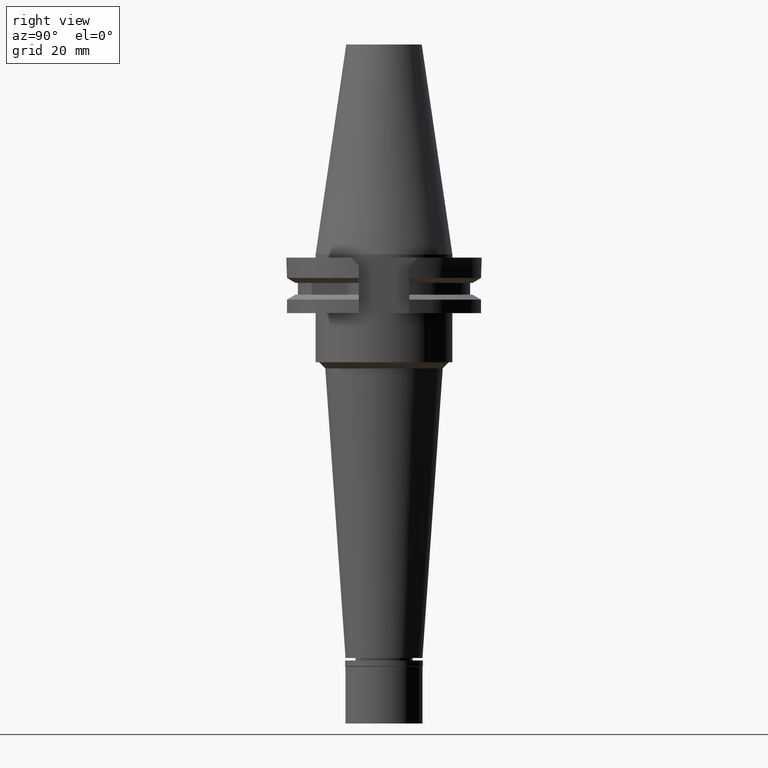
[diagram: clean part render]
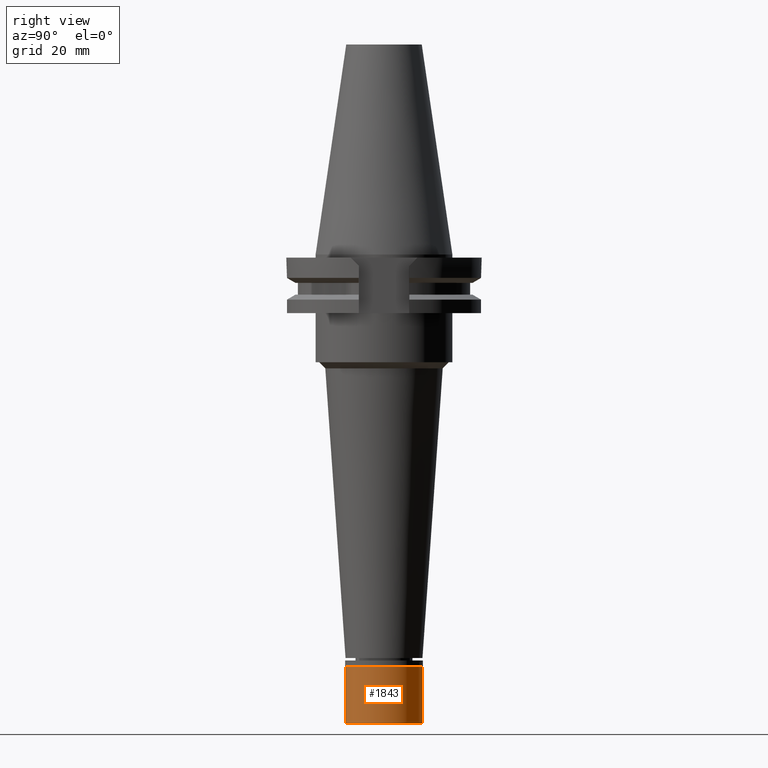
[diagram: same view with one face highlighted and labeled with its STEP entity id]
A machine part, right view. The second image highlights one B-rep face of the part: STEP entity #1843.
In plain terms, the highlighted cylindrical surface (partial cylindrical patch) has radius 12.5 mm, axis along (0, 0, -1).
Its self-contained STEP definition (entity closure, byte-faithful):
#56 = CARTESIAN_POINT ( 'NONE',  ( 0.0000000000000000000, 0.0000000000000000000, -2.000000000000000000 ) ) ;
#288 = FACE_OUTER_BOUND ( 'NONE', #3217, .T. ) ;
#315 = VERTEX_POINT ( 'NONE', #2387 ) ;
#342 = EDGE_CURVE ( 'NONE', #315, #1476, #2000, .T. ) ;
#451 = CIRCLE ( 'NONE', #1829, 12.50000000000000000 ) ;
#491 = ORIENTED_EDGE ( 'NONE', *, *, #2124, .F. ) ;
#593 = CYLINDRICAL_SURFACE ( 'NONE', #1396, 12.50000000000000000 ) ;
#775 = EDGE_CURVE ( 'NONE', #1476, #3262, #777, .T. ) ;
#777 = LINE ( 'NONE', #1574, #3019 ) ;
#917 = AXIS2_PLACEMENT_3D ( 'NONE', #56, #2909, #2139 ) ;
#1103 = DIRECTION ( 'NONE',  ( 0.0000000000000000000, -1.000000000000000000, 0.0000000000000000000 ) ) ;
#1178 = CARTESIAN_POINT ( 'NONE',  ( 0.0000000000000000000, 12.50000000000000000, -20.50000000000000000 ) ) ;
#1233 = VECTOR ( 'NONE', #2005, 1000.000000000000000 ) ;
#1235 = CARTESIAN_POINT ( 'NONE',  ( 0.0000000000000000000, -12.50000000000000000, -2.000000000000000000 ) ) ;
#1358 = DIRECTION ( 'NONE',  ( 0.0000000000000000000, 0.0000000000000000000, -1.000000000000000000 ) ) ;
#1396 = AXIS2_PLACEMENT_3D ( 'NONE', #3259, #1358, #1103 ) ;
#1476 = VERTEX_POINT ( 'NONE', #1235 ) ;
#1530 = ORIENTED_EDGE ( 'NONE', *, *, #775, .T. ) ;
#1574 = CARTESIAN_POINT ( 'NONE',  ( 0.0000000000000000000, -12.50000000000000000, -2.000000000000000000 ) ) ;
#1753 = EDGE_CURVE ( 'NONE', #3262, #2834, #451, .T. ) ;
#1783 = CARTESIAN_POINT ( 'NONE',  ( 0.0000000000000000000, 12.50000000000000000, -2.000000000000000000 ) ) ;
#1829 = AXIS2_PLACEMENT_3D ( 'NONE', #2082, #3123, #2365 ) ;
#1843 = ADVANCED_FACE ( 'NONE', ( #288 ), #593, .T. ) ;
#2000 = CIRCLE ( 'NONE', #917, 12.50000000000000000 ) ;
#2005 = DIRECTION ( 'NONE',  ( 0.0000000000000000000, 0.0000000000000000000, -1.000000000000000000 ) ) ;
#2082 = CARTESIAN_POINT ( 'NONE',  ( 0.0000000000000000000, 0.0000000000000000000, -20.50000000000000000 ) ) ;
#2124 = EDGE_CURVE ( 'NONE', #315, #2834, #2520, .T. ) ;
#2139 = DIRECTION ( 'NONE',  ( 0.0000000000000000000, 1.000000000000000000, 0.0000000000000000000 ) ) ;
#2365 = DIRECTION ( 'NONE',  ( 0.0000000000000000000, -1.000000000000000000, 0.0000000000000000000 ) ) ;
#2387 = CARTESIAN_POINT ( 'NONE',  ( 0.0000000000000000000, 12.50000000000000000, -2.000000000000000000 ) ) ;
#2410 = ORIENTED_EDGE ( 'NONE', *, *, #342, .T. ) ;
#2486 = ORIENTED_EDGE ( 'NONE', *, *, #1753, .T. ) ;
#2520 = LINE ( 'NONE', #1783, #1233 ) ;
#2834 = VERTEX_POINT ( 'NONE', #1178 ) ;
#2870 = DIRECTION ( 'NONE',  ( 0.0000000000000000000, 0.0000000000000000000, -1.000000000000000000 ) ) ;
#2909 = DIRECTION ( 'NONE',  ( 0.0000000000000000000, 0.0000000000000000000, -1.000000000000000000 ) ) ;
#3019 = VECTOR ( 'NONE', #2870, 1000.000000000000000 ) ;
#3123 = DIRECTION ( 'NONE',  ( 0.0000000000000000000, 0.0000000000000000000, 1.000000000000000000 ) ) ;
#3152 = CARTESIAN_POINT ( 'NONE',  ( 0.0000000000000000000, -12.50000000000000000, -20.50000000000000000 ) ) ;
#3217 = EDGE_LOOP ( 'NONE', ( #2410, #1530, #2486, #491 ) ) ;
#3259 = CARTESIAN_POINT ( 'NONE',  ( 0.0000000000000000000, 0.0000000000000000000, 0.0000000000000000000 ) ) ;
#3262 = VERTEX_POINT ( 'NONE', #3152 ) ;